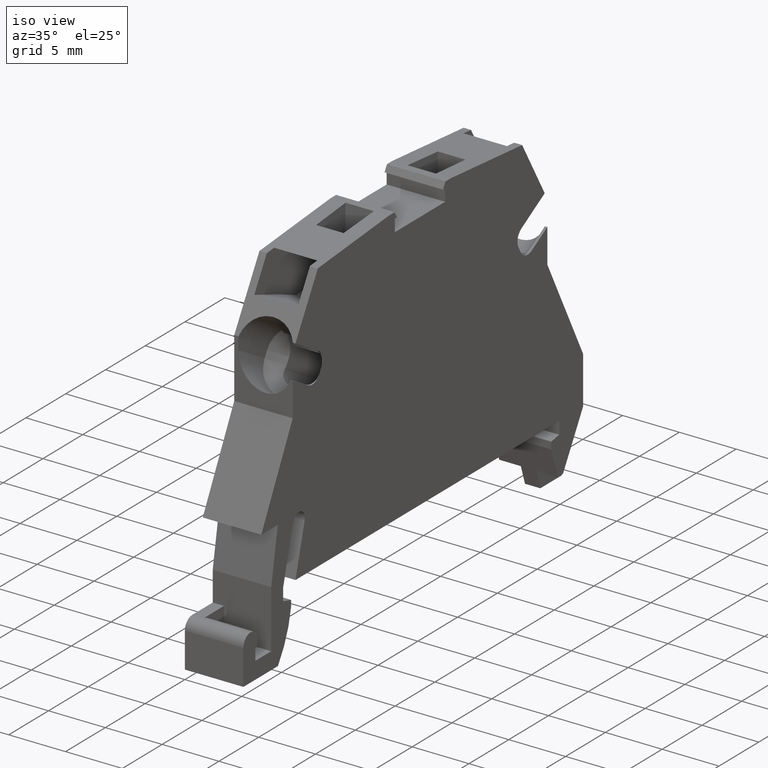
[diagram: clean part render]
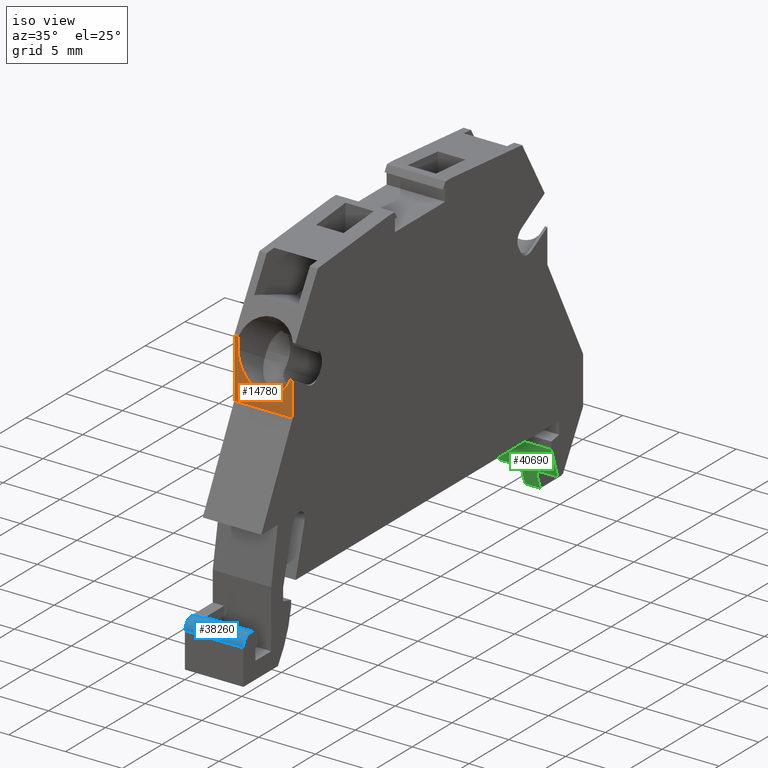
[diagram: same view with three faces highlighted in distinct colors, each labeled with its STEP entity id]
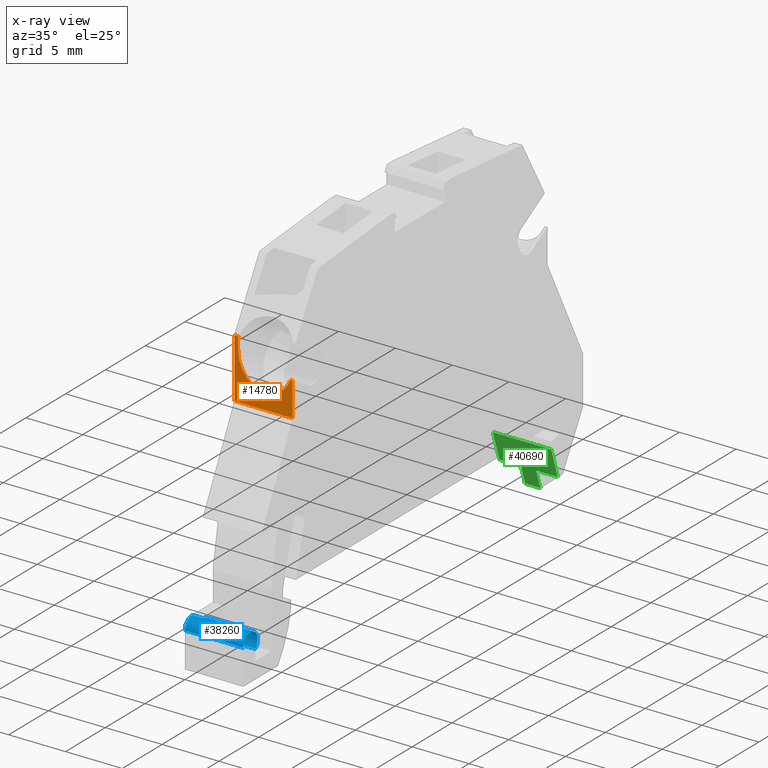
[diagram: x-ray of the same camera — body ghosted, the three highlighted faces saturated]
A machine part, iso view with three faces highlighted in distinct colors.
The next image is the same camera in x-ray (body ghosted, the three faces saturated) — at least one of them is partly hidden behind the body in this view.
Their STEP definitions:

[orange] entity #14780 — the highlighted planar face has unit normal (0, -1, -0).
#1760=CARTESIAN_POINT('',(73.5288839072462,137.243633130583,
9.22500000000045));
#1770=VERTEX_POINT('',#1760);
#1800=CARTESIAN_POINT('',(70.2799438227505,137.243633130582,
9.22499999999885));
#1810=DIRECTION('',(-1.,-1.94233518158171E-13,-4.93578479058867E-13));
#1820=VECTOR('',#1810,1.);
#1830=LINE('',#1800,#1820);
#1840=CARTESIAN_POINT('',(70.5370254785312,137.243633130585,
9.22499999999897));
#1850=VERTEX_POINT('',#1840);
#1860=EDGE_CURVE('',#1770,#1850,#1830,.T.);
#13520=CARTESIAN_POINT('',(68.294909311,137.243633130582,14.374999999998
));
#13530=VERTEX_POINT('',#13520);
#13560=CARTESIAN_POINT('',(70.2799438227478,137.243633130582,
14.374999999999));
#13570=DIRECTION('',(-1.,-1.94233518158171E-13,-5.15866206278217E-13));
#13580=VECTOR('',#13570,1.);
#13590=LINE('',#13560,#13580);
#13600=CARTESIAN_POINT('',(73.5288839072437,137.243633130583,
14.3750000000007));
#13610=VERTEX_POINT('',#13600);
#13620=EDGE_CURVE('',#13610,#13530,#13590,.T.);
#14120=CARTESIAN_POINT('',(73.5288839072484,137.243633130583,
4.37500000000067));
#14130=DIRECTION('',(4.84179212859339E-13,-9.71062622903474E-15,-1.));
#14140=VECTOR('',#14130,1.);
#14150=LINE('',#14120,#14140);
#14160=EDGE_CURVE('',#13610,#1770,#14150,.T.);
#14280=CARTESIAN_POINT('',(73.7167113114657,137.243633130583,
10.1750000000008));
#14290=DIRECTION('',(-1.94178007006935E-13,1.,-9.71062622912872E-15));
#14300=DIRECTION('',(1.,1.9417800700694E-13,5.15865937477235E-13));
#14310=AXIS2_PLACEMENT_3D('',#14280,#14290,#14300);
#14320=PLANE('',#14310);
#14330=CARTESIAN_POINT('',(68.6895046171243,137.243633130582,
11.624999999997));
#14340=DIRECTION('',(-1.9417800700694E-13,1.,-9.71062622912877E-15));
#14350=DIRECTION('',(1.,1.94122495855709E-13,1.05357811484479E-12));
#14360=AXIS2_PLACEMENT_3D('',#14330,#14340,#14350);
#14370=ELLIPSE('',#14360,2.77128129211124,2.4);
#14380=CARTESIAN_POINT('',(68.2949093109948,137.243633130582,
14.0005464441439));
#14390=VERTEX_POINT('',#14380);
#14400=CARTESIAN_POINT('',(68.6895046171175,137.243633130582,
14.024999999997));
#14410=VERTEX_POINT('',#14400);
#14420=EDGE_CURVE('',#14390,#14410,#14370,.T.);
#14430=ORIENTED_EDGE('',*,*,#14420,.F.);
#14440=CARTESIAN_POINT('',(70.279943822748,137.243633130582,
14.0249999999978));
#14450=DIRECTION('',(1.,1.94233518158171E-13,5.25525146592455E-13));
#14460=VECTOR('',#14450,1.);
#14470=LINE('',#14440,#14460);
#14480=CARTESIAN_POINT('',(69.3823249401483,137.243633130582,
14.0249999999974));
#14490=VERTEX_POINT('',#14480);
#14500=EDGE_CURVE('',#14410,#14490,#14470,.T.);
#14510=ORIENTED_EDGE('',*,*,#14500,.F.);
#14520=CARTESIAN_POINT('',(69.3823249401521,137.243633130582,
11.6249999999974));
#14530=DIRECTION('',(-1.9417800700694E-13,1.,-9.71062622912877E-15));
#14540=DIRECTION('',(1.,1.94122495855709E-13,1.05357811484479E-12));
#14550=AXIS2_PLACEMENT_3D('',#14520,#14530,#14540);
#14560=ELLIPSE('',#14550,2.77128129211124,2.4);
#14570=CARTESIAN_POINT('',(70.5370254785276,137.243633130582,
9.44325757706885));
#14580=VERTEX_POINT('',#14570);
#14590=EDGE_CURVE('',#14490,#14580,#14560,.T.);
#14600=ORIENTED_EDGE('',*,*,#14590,.F.);
#14610=CARTESIAN_POINT('',(70.5370254785343,137.243633130582,
4.37499999999913));
#14620=DIRECTION('',(3.49506053326196E-13,-9.71062622906089E-15,-1.));
#14630=VECTOR('',#14620,1.);
#14640=LINE('',#14610,#14630);
#14650=EDGE_CURVE('',#14580,#1850,#14640,.T.);
#14660=ORIENTED_EDGE('',*,*,#14650,.F.);
#14670=ORIENTED_EDGE('',*,*,#1860,.T.);
#14680=ORIENTED_EDGE('',*,*,#14160,.T.);
#14690=ORIENTED_EDGE('',*,*,#13620,.F.);
#14700=CARTESIAN_POINT('',(68.2949093110051,137.243633130582,
4.37499999999797));
#14710=DIRECTION('',(-5.15879188485992E-13,9.71062622902853E-15,1.));
#14720=VECTOR('',#14710,1.);
#14730=LINE('',#14700,#14720);
#14740=EDGE_CURVE('',#14390,#13530,#14730,.T.);
#14750=ORIENTED_EDGE('',*,*,#14740,.T.);
#14760=EDGE_LOOP('',(#14750,#14690,#14680,#14670,#14660,#14600,#14510,
#14430));
#14770=FACE_OUTER_BOUND('',#14760,.T.);
#14780=ADVANCED_FACE('',(#14770),#14320,.T.);

[blue] entity #38260 — the highlighted cylindrical surface (edge-blend (fillet) strip) has radius 0.9 mm, axis along (1, -0, 0).
#120=CARTESIAN_POINT('',(88.5288839072393,142.543633130588,
13.3750000000062));
#130=VERTEX_POINT('',#120);
#360=CARTESIAN_POINT('',(90.0997043004861,141.94363313059,
13.3750000000072));
#370=VERTEX_POINT('',#360);
#400=CARTESIAN_POINT('',(89.4288839072359,142.54363313059,
13.3750000000067));
#410=DIRECTION('',(5.25524337507278E-13,-3.14528095494942E-13,-1.));
#420=DIRECTION('',(3.14470671725076E-13,-1.,3.14528095495107E-13));
#430=AXIS2_PLACEMENT_3D('',#400,#410,#420);
#440=CIRCLE('',#430,0.900000000000114);
#450=EDGE_CURVE('',#370,#130,#440,.T.);
#5260=CARTESIAN_POINT('',(89.4288839072415,143.443633130588,
9.22500000000824));
#5270=VERTEX_POINT('',#5260);
#5300=CARTESIAN_POINT('',(89.4288839072415,142.543633130589,
9.22500000000868));
#5310=DIRECTION('',(5.03237389910914E-13,-2.85605513013457E-25,-1.));
#5320=DIRECTION('',(-5.55111512312578E-17,-1.,2.85656000111391E-25));
#5330=AXIS2_PLACEMENT_3D('',#5300,#5310,#5320);
#5340=CIRCLE('',#5330,0.900000000000114);
#5350=CARTESIAN_POINT('',(90.0997043004883,141.943633130588,
9.22500000000879));
#5360=VERTEX_POINT('',#5350);
#5370=EDGE_CURVE('',#5360,#5270,#5340,.T.);
#11010=CARTESIAN_POINT('',(88.5288839072388,142.543633130588,
14.3750000000084));
#11020=VERTEX_POINT('',#11010);
#11050=CARTESIAN_POINT('',(89.4288839072389,142.543633130589,
14.3750000000088));
#11060=DIRECTION('',(5.03237389910914E-13,-2.85605513013457E-25,-1.));
#11070=DIRECTION('',(-1.11022302462516E-16,-1.,2.85555025915523E-25));
#11080=AXIS2_PLACEMENT_3D('',#11050,#11060,#11070);
#11090=CIRCLE('',#11080,0.900000000000114);
#11100=CARTESIAN_POINT('',(89.4288839072389,143.443633130588,
14.3750000000088));
#11110=VERTEX_POINT('',#11100);
#11120=EDGE_CURVE('',#11020,#11110,#11090,.T.);
#37800=CARTESIAN_POINT('',(88.5288839072367,142.543633130588,
9.22500000000822));
#37810=DIRECTION('',(-5.03237389910914E-13,2.85605513013457E-25,1.));
#37820=VECTOR('',#37810,1.);
#37830=LINE('',#37800,#37820);
#37840=EDGE_CURVE('',#130,#11020,#37830,.T.);
#38030=CARTESIAN_POINT('',(89.4288839072415,142.543633130589,
9.22500000000868));
#38040=DIRECTION('',(5.03237389910914E-13,-2.85605513013457E-25,-1.));
#38050=DIRECTION('',(-5.55111512312578E-17,-1.,2.85656000111391E-25));
#38060=AXIS2_PLACEMENT_3D('',#38030,#38040,#38050);
#38070=CYLINDRICAL_SURFACE('',#38060,0.900000000000114);
#38080=ORIENTED_EDGE('',*,*,#450,.T.);
#38090=CARTESIAN_POINT('',(90.0997043004883,141.943633130588,
9.2250000000072));
#38100=DIRECTION('',(-5.25524337507278E-13,3.14528095494942E-13,1.));
#38110=VECTOR('',#38100,1.);
#38120=LINE('',#38090,#38110);
#38130=EDGE_CURVE('',#5360,#370,#38120,.T.);
#38140=ORIENTED_EDGE('',*,*,#38130,.T.);
#38150=ORIENTED_EDGE('',*,*,#5370,.F.);
#38160=CARTESIAN_POINT('',(89.4288839072415,143.443633130589,
9.22500000000867));
#38170=DIRECTION('',(-5.03237389910914E-13,2.85605513013457E-25,1.));
#38180=VECTOR('',#38170,1.);
#38190=LINE('',#38160,#38180);
#38200=EDGE_CURVE('',#5270,#11110,#38190,.T.);
#38210=ORIENTED_EDGE('',*,*,#38200,.F.);
#38220=ORIENTED_EDGE('',*,*,#11120,.T.);
#38230=ORIENTED_EDGE('',*,*,#37840,.T.);
#38240=EDGE_LOOP('',(#38230,#38220,#38210,#38150,#38140,#38080));
#38250=FACE_OUTER_BOUND('',#38240,.T.);
#38260=ADVANCED_FACE('',(#38250),#38070,.T.);

[green] entity #40690 — the highlighted planar face has unit normal (-0, 0.9511, 0.309).
#1150=CARTESIAN_POINT('',(90.9288839072492,103.93133389,11.1250000000196
));
#1160=VERTEX_POINT('',#1150);
#1390=CARTESIAN_POINT('',(92.5288839072404,103.41146237603,
11.1250000000206));
#1400=VERTEX_POINT('',#1390);
#1430=CARTESIAN_POINT('',(62.7867673069193,113.075261867132,
11.1250000000019));
#1440=DIRECTION('',(0.95105651629514,-0.309016994374991,
5.97009366779522E-13));
#1450=VECTOR('',#1440,1.);
#1460=LINE('',#1430,#1450);
#1470=EDGE_CURVE('',#1160,#1400,#1460,.T.);
#4120=CARTESIAN_POINT('',(90.9288839072502,103.93133389,9.22500000000937
));
#4130=VERTEX_POINT('',#4120);
#4160=CARTESIAN_POINT('',(62.3262953087769,113.224878288892,
9.22499999999503));
#4170=DIRECTION('',(-0.95105651629514,0.309016994374991,
-4.78607198918221E-13));
#4180=VECTOR('',#4170,1.);
#4190=LINE('',#4160,#4180);
#4200=CARTESIAN_POINT('',(88.4288839072414,104.743633130585,
9.22500000000812));
#4210=VERTEX_POINT('',#4200);
#4220=EDGE_CURVE('',#4130,#4210,#4190,.T.);
#12160=CARTESIAN_POINT('',(88.4288839072389,104.743633130585,
14.3750000000087));
#12170=VERTEX_POINT('',#12160);
#12200=CARTESIAN_POINT('',(213.446667012653,64.1228930202564,
14.3750000000736));
#12210=DIRECTION('',(0.95105651629514,-0.309016994374991,
4.93619847611305E-13));
#12220=VECTOR('',#12210,1.);
#12230=LINE('',#12200,#12220);
#12240=CARTESIAN_POINT('',(90.9288839072475,103.93133389,14.37500000001)
);
#12250=VERTEX_POINT('',#12240);
#12260=EDGE_CURVE('',#12170,#12250,#12230,.T.);
#40120=CARTESIAN_POINT('',(88.4288839072439,104.743633130585,
4.47500000000867));
#40130=DIRECTION('',(-5.03237389910914E-13,2.85605513013457E-25,1.));
#40140=VECTOR('',#40130,1.);
#40150=LINE('',#40120,#40140);
#40160=EDGE_CURVE('',#4210,#12170,#40150,.T.);
#40300=CARTESIAN_POINT('',(92.5288839072414,103.41146237603,
9.22500000001024));
#40310=DIRECTION('',(-0.30901699437499,-0.95105651629514,
-1.55508905687114E-13));
#40320=DIRECTION('',(0.95105651629514,-0.309016994374991,
4.78607198918221E-13));
#40330=AXIS2_PLACEMENT_3D('',#40300,#40310,#40320);
#40340=PLANE('',#40330);
#40350=ORIENTED_EDGE('',*,*,#4220,.T.);
#40360=CARTESIAN_POINT('',(90.9288839072526,103.93133389,
4.37500000000997));
#40370=DIRECTION('',(-4.93579527483086E-13,-3.13802972602362E-15,1.));
#40380=VECTOR('',#40370,1.);
#40390=LINE('',#40360,#40380);
#40400=EDGE_CURVE('',#4130,#1160,#40390,.T.);
#40410=ORIENTED_EDGE('',*,*,#40400,.F.);
#40420=ORIENTED_EDGE('',*,*,#1470,.F.);
#40430=CARTESIAN_POINT('',(92.5288839072438,103.41146237603,
4.4750000000108));
#40440=DIRECTION('',(-5.03237389910914E-13,2.85605513013457E-25,1.));
#40450=VECTOR('',#40440,1.);
#40460=LINE('',#40430,#40450);
#40470=CARTESIAN_POINT('',(92.5288839072397,103.41146237603,
12.4750000000206));
#40480=VERTEX_POINT('',#40470);
#40490=EDGE_CURVE('',#1400,#40480,#40460,.T.);
#40500=ORIENTED_EDGE('',*,*,#40490,.F.);
#40510=CARTESIAN_POINT('',(62.7867673069186,113.075261867132,
12.4750000000019));
#40520=DIRECTION('',(0.95105651629514,-0.309016994374991,
5.97009366779522E-13));
#40530=VECTOR('',#40520,1.);
#40540=LINE('',#40510,#40530);
#40550=CARTESIAN_POINT('',(90.9288839072484,103.93133389,
12.4750000000196));
#40560=VERTEX_POINT('',#40550);
#40570=EDGE_CURVE('',#40560,#40480,#40540,.T.);
#40580=ORIENTED_EDGE('',*,*,#40570,.T.);
#40590=CARTESIAN_POINT('',(90.9288839072526,103.93133389,
4.37500000000997));
#40600=DIRECTION('',(-5.15866206278217E-13,4.10335117813159E-15,1.));
#40610=VECTOR('',#40600,1.);
#40620=LINE('',#40590,#40610);
#40630=EDGE_CURVE('',#40560,#12250,#40620,.T.);
#40640=ORIENTED_EDGE('',*,*,#40630,.F.);
#40650=ORIENTED_EDGE('',*,*,#12260,.T.);
#40660=ORIENTED_EDGE('',*,*,#40160,.T.);
#40670=EDGE_LOOP('',(#40660,#40650,#40640,#40580,#40500,#40420,#40410,
#40350));
#40680=FACE_OUTER_BOUND('',#40670,.T.);
#40690=ADVANCED_FACE('',(#40680),#40340,.F.);